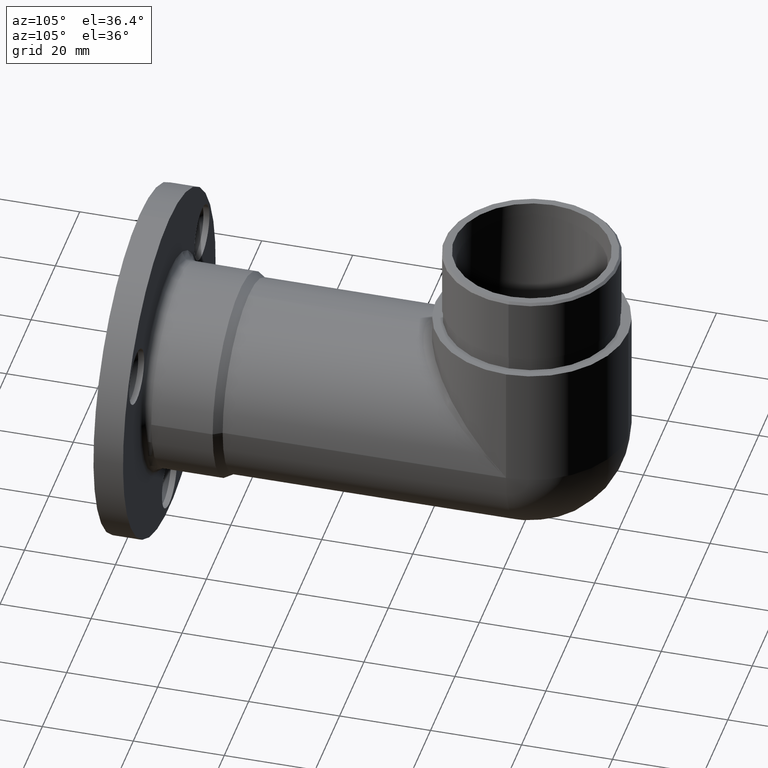
[diagram: clean part render]
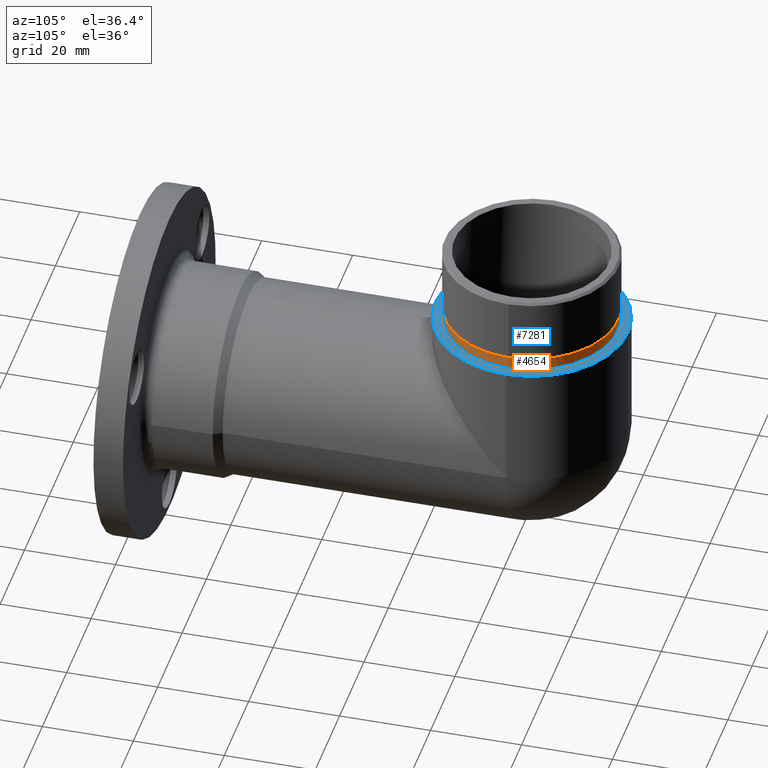
[diagram: same view with the hole feature highlighted: cylindrical wall and planar end face, labeled with their STEP entity ids]
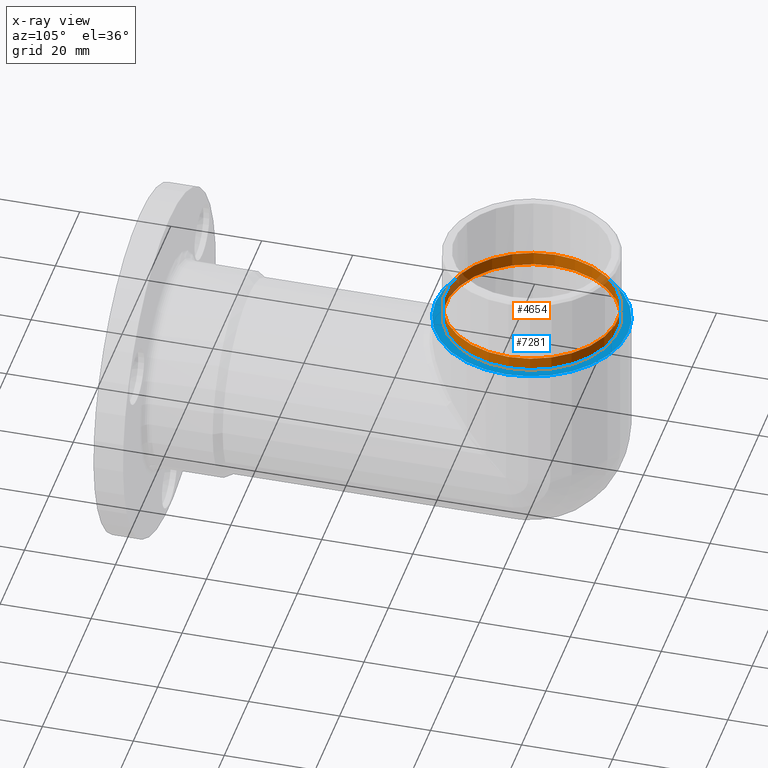
[diagram: x-ray of the same camera — body ghosted, the hole faces saturated]
A machine part, auxiliary view. The highlighted faces form one hole feature of diameter 37.9 mm: the cylindrical wall (entity #4654, orange) and its adjacent planar end face (entity #7281, blue) — they share a circular edge in the B-rep.
The next image is the same camera in x-ray (body ghosted, the hole faces saturated) — the bore reads through the body.
Wall:
#599 = AXIS2_PLACEMENT_3D ( 'NONE', #10390, #3362, #3255 ) ;
#1390 = VERTEX_POINT ( 'NONE', #12345 ) ;
#1630 = EDGE_CURVE ( 'NONE', #1390, #1390, #8211, .T. ) ;
#1671 = DIRECTION ( 'NONE',  ( -0.0000000000000000000, -0.0000000000000000000, -1.000000000000000000 ) ) ;
#2078 = FACE_OUTER_BOUND ( 'NONE', #7848, .T. ) ;
#2925 = EDGE_CURVE ( 'NONE', #12802, #12802, #6539, .T. ) ;
#3255 = DIRECTION ( 'NONE',  ( 1.000000000000000000, 0.0000000000000000000, 0.0000000000000000000 ) ) ;
#3362 = DIRECTION ( 'NONE',  ( 0.0000000000000000000, 0.0000000000000000000, 1.000000000000000000 ) ) ;
#3397 = AXIS2_PLACEMENT_3D ( 'NONE', #9898, #1671, #8867 ) ;
#4448 = AXIS2_PLACEMENT_3D ( 'NONE', #9027, #7795, #5432 ) ;
#4654 = ADVANCED_FACE ( 'NONE', ( #2078, #7798 ), #14825, .T. ) ;
#5378 = CARTESIAN_POINT ( 'NONE',  ( 18.95000000000000600, 86.20000000000003100, 30.30000000000000400 ) ) ;
#5432 = DIRECTION ( 'NONE',  ( 1.000000000000000000, 0.0000000000000000000, 0.0000000000000000000 ) ) ;
#5816 = EDGE_LOOP ( 'NONE', ( #7220 ) ) ;
#6539 = CIRCLE ( 'NONE', #599, 18.94999999999999900 ) ;
#7220 = ORIENTED_EDGE ( 'NONE', *, *, #1630, .T. ) ;
#7795 = DIRECTION ( 'NONE',  ( 0.0000000000000000000, 0.0000000000000000000, 1.000000000000000000 ) ) ;
#7798 = FACE_OUTER_BOUND ( 'NONE', #5816, .T. ) ;
#7848 = EDGE_LOOP ( 'NONE', ( #13211 ) ) ;
#8211 = CIRCLE ( 'NONE', #4448, 18.94999999999999900 ) ;
#8867 = DIRECTION ( 'NONE',  ( -1.000000000000000000, 0.0000000000000000000, 0.0000000000000000000 ) ) ;
#9027 = CARTESIAN_POINT ( 'NONE',  ( 5.352986175202233300E-015, 86.20000000000003100, 27.30000000000000400 ) ) ;
#9898 = CARTESIAN_POINT ( 'NONE',  ( 5.352986175202233300E-015, 86.20000000000003100, 30.30000000000000400 ) ) ;
#10390 = CARTESIAN_POINT ( 'NONE',  ( 5.352986175202233300E-015, 86.20000000000003100, 30.30000000000000400 ) ) ;
#12345 = CARTESIAN_POINT ( 'NONE',  ( 18.95000000000000600, 86.20000000000003100, 27.30000000000000400 ) ) ;
#12802 = VERTEX_POINT ( 'NONE', #5378 ) ;
#13211 = ORIENTED_EDGE ( 'NONE', *, *, #2925, .F. ) ;
#14825 = CYLINDRICAL_SURFACE ( 'NONE', #3397, 18.94999999999999900 ) ;
End face:
#1390 = VERTEX_POINT ( 'NONE', #12345 ) ;
#1546 = PLANE ( 'NONE',  #8249 ) ;
#1550 = AXIS2_PLACEMENT_3D ( 'NONE', #5339, #6667, #12405 ) ;
#1630 = EDGE_CURVE ( 'NONE', #1390, #1390, #8211, .T. ) ;
#1862 = DIRECTION ( 'NONE',  ( 0.0000000000000000000, 0.0000000000000000000, 1.000000000000000000 ) ) ;
#2245 = CARTESIAN_POINT ( 'NONE',  ( 3.469446951953614200E-015, 86.20000000000003100, 27.30000000000000400 ) ) ;
#2444 = VERTEX_POINT ( 'NONE', #8398 ) ;
#2528 = VERTEX_POINT ( 'NONE', #8648 ) ;
#2582 = FACE_OUTER_BOUND ( 'NONE', #6620, .T. ) ;
#2661 = AXIS2_PLACEMENT_3D ( 'NONE', #9442, #3636, #4813 ) ;
#3636 = DIRECTION ( 'NONE',  ( 0.0000000000000000000, 0.0000000000000000000, 1.000000000000000000 ) ) ;
#4060 = CARTESIAN_POINT ( 'NONE',  ( 6.938893903907228400E-015, 86.20000000000003100, 27.30000000000000400 ) ) ;
#4448 = AXIS2_PLACEMENT_3D ( 'NONE', #9027, #7795, #5432 ) ;
#4627 = DIRECTION ( 'NONE',  ( 1.000000000000000000, 0.0000000000000000000, 0.0000000000000000000 ) ) ;
#4721 = EDGE_CURVE ( 'NONE', #12646, #7275, #10722, .T. ) ;
#4813 = DIRECTION ( 'NONE',  ( 1.000000000000000000, 0.0000000000000000000, 0.0000000000000000000 ) ) ;
#5339 = CARTESIAN_POINT ( 'NONE',  ( 3.767078446497238200E-015, 86.20000000000003100, 27.30000000000000400 ) ) ;
#5432 = DIRECTION ( 'NONE',  ( 1.000000000000000000, 0.0000000000000000000, 0.0000000000000000000 ) ) ;
#5568 = ORIENTED_EDGE ( 'NONE', *, *, #1630, .F. ) ;
#6463 = DIRECTION ( 'NONE',  ( 1.000000000000000000, 0.0000000000000000000, 0.0000000000000000000 ) ) ;
#6567 = ORIENTED_EDGE ( 'NONE', *, *, #10626, .T. ) ;
#6620 = EDGE_LOOP ( 'NONE', ( #8744, #6567, #15214, #12208 ) ) ;
#6667 = DIRECTION ( 'NONE',  ( 0.0000000000000000000, 0.0000000000000000000, 1.000000000000000000 ) ) ;
#7029 = CARTESIAN_POINT ( 'NONE',  ( 6.938893903907228400E-015, 65.00000000000002800, 27.30000000000000400 ) ) ;
#7275 = VERTEX_POINT ( 'NONE', #13313 ) ;
#7281 = ADVANCED_FACE ( 'NONE', ( #2582, #14198 ), #1546, .T. ) ;
#7422 = DIRECTION ( 'NONE',  ( 0.0000000000000000000, 0.0000000000000000000, 1.000000000000000000 ) ) ;
#7795 = DIRECTION ( 'NONE',  ( 0.0000000000000000000, 0.0000000000000000000, 1.000000000000000000 ) ) ;
#8211 = CIRCLE ( 'NONE', #4448, 18.94999999999999900 ) ;
#8249 = AXIS2_PLACEMENT_3D ( 'NONE', #14495, #7422, #14598 ) ;
#8398 = CARTESIAN_POINT ( 'NONE',  ( 6.938893903907228400E-015, 107.4000000000000200, 27.30000000000000400 ) ) ;
#8465 = CIRCLE ( 'NONE', #10522, 21.19999999999999900 ) ;
#8648 = CARTESIAN_POINT ( 'NONE',  ( -21.19999999999999600, 86.20000000000003100, 27.30000000000000400 ) ) ;
#8744 = ORIENTED_EDGE ( 'NONE', *, *, #9690, .T. ) ;
#9027 = CARTESIAN_POINT ( 'NONE',  ( 5.352986175202233300E-015, 86.20000000000003100, 27.30000000000000400 ) ) ;
#9442 = CARTESIAN_POINT ( 'NONE',  ( 5.352986175202233300E-015, 86.20000000000003100, 27.30000000000000400 ) ) ;
#9690 = EDGE_CURVE ( 'NONE', #2444, #2528, #8465, .T. ) ;
#10522 = AXIS2_PLACEMENT_3D ( 'NONE', #2245, #11645, #4627 ) ;
#10626 = EDGE_CURVE ( 'NONE', #2528, #12646, #15312, .T. ) ;
#10722 = CIRCLE ( 'NONE', #11555, 21.19999999999999900 ) ;
#10893 = EDGE_LOOP ( 'NONE', ( #5568 ) ) ;
#11555 = AXIS2_PLACEMENT_3D ( 'NONE', #4060, #1862, #6463 ) ;
#11645 = DIRECTION ( 'NONE',  ( 0.0000000000000000000, 0.0000000000000000000, 1.000000000000000000 ) ) ;
#12208 = ORIENTED_EDGE ( 'NONE', *, *, #12613, .T. ) ;
#12345 = CARTESIAN_POINT ( 'NONE',  ( 18.95000000000000600, 86.20000000000003100, 27.30000000000000400 ) ) ;
#12405 = DIRECTION ( 'NONE',  ( 1.000000000000000000, 0.0000000000000000000, 0.0000000000000000000 ) ) ;
#12613 = EDGE_CURVE ( 'NONE', #7275, #2444, #14719, .T. ) ;
#12646 = VERTEX_POINT ( 'NONE', #7029 ) ;
#13313 = CARTESIAN_POINT ( 'NONE',  ( 21.20000000000000600, 86.20000000000003100, 27.30000000000000400 ) ) ;
#14198 = FACE_BOUND ( 'NONE', #10893, .T. ) ;
#14495 = CARTESIAN_POINT ( 'NONE',  ( 3.469446951953614200E-015, 86.20000000000003100, 27.30000000000000400 ) ) ;
#14598 = DIRECTION ( 'NONE',  ( 1.000000000000000000, 0.0000000000000000000, -0.0000000000000000000 ) ) ;
#14719 = CIRCLE ( 'NONE', #2661, 21.19999999999999900 ) ;
#15214 = ORIENTED_EDGE ( 'NONE', *, *, #4721, .T. ) ;
#15312 = CIRCLE ( 'NONE', #1550, 21.19999999999999900 ) ;